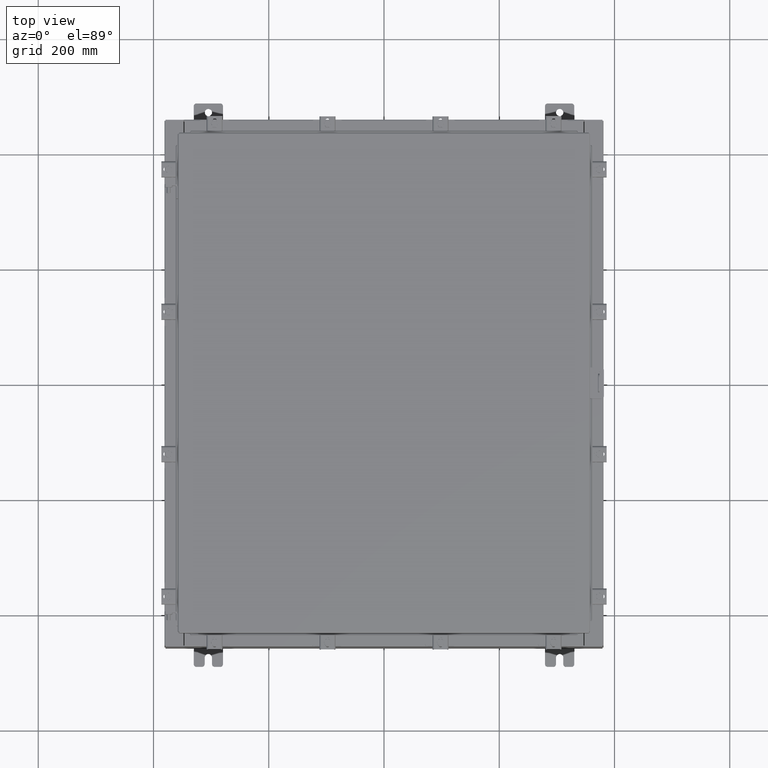
[diagram: clean part render]
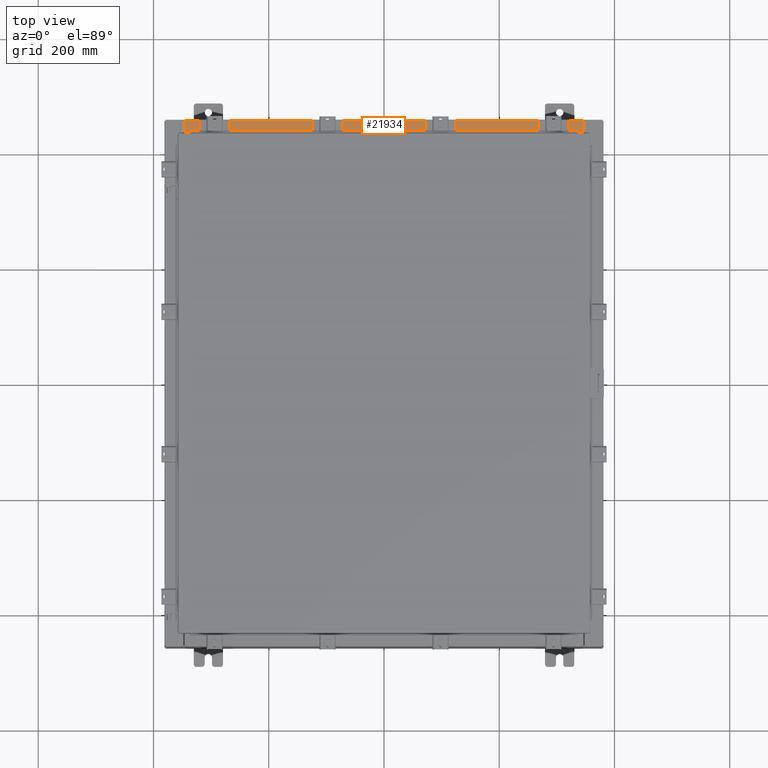
[diagram: same view with one face highlighted and labeled with its STEP entity id]
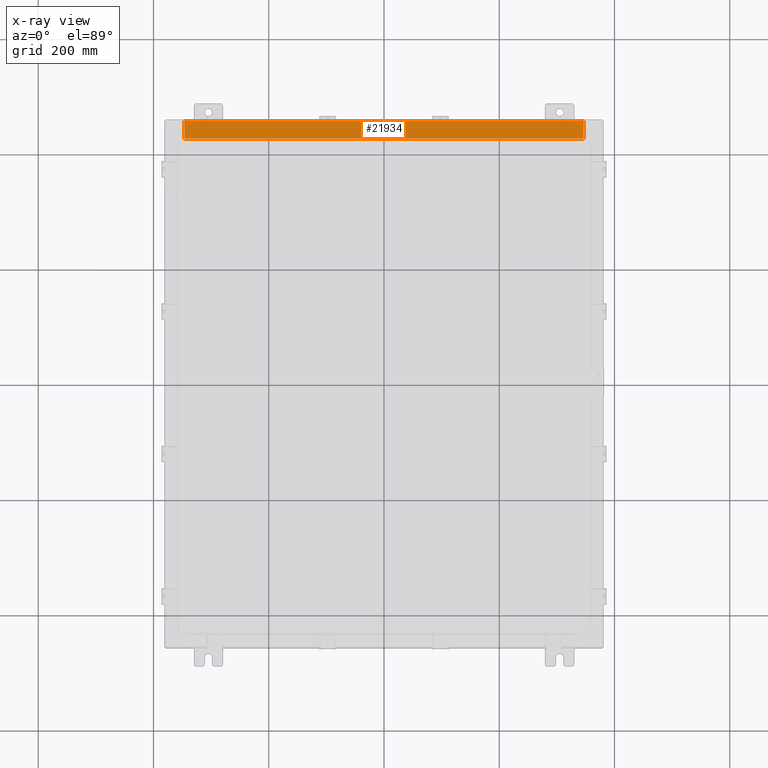
[diagram: x-ray of the same camera — body ghosted, the highlighted face saturated]
A machine part, top view. The second image highlights one B-rep face of the part: STEP entity #21934.
The next image is the same camera in x-ray: the body ghosted, the highlighted face saturated — about 0% of this face is hidden behind the body in this view.
In plain terms, the highlighted planar face has unit normal (0, 0, 1).
Its self-contained STEP definition (entity closure, byte-faithful):
#238 = DIRECTION ( 'NONE',  ( -1.000000000000000000, 2.003232330437526000E-017, -7.144290108027600900E-032 ) ) ;
#642 = EDGE_CURVE ( 'NONE', #10530, #777, #15994, .T. ) ;
#777 = VERTEX_POINT ( 'NONE', #992 ) ;
#800 = DIRECTION ( 'NONE',  ( -0.0000000000000000000, 1.000000000000000000, -3.566381192773190000E-015 ) ) ;
#817 = VERTEX_POINT ( 'NONE', #20009 ) ;
#992 = CARTESIAN_POINT ( 'NONE',  ( -13.63719999999999800, -0.08770000000000026400, 4.000000000000000900 ) ) ;
#1172 = ORIENTED_EDGE ( 'NONE', *, *, #23646, .F. ) ;
#2699 = LINE ( 'NONE', #17365, #8342 ) ;
#3154 = VECTOR ( 'NONE', #238, 39.37007874015748100 ) ;
#4201 = ORIENTED_EDGE ( 'NONE', *, *, #642, .F. ) ;
#6037 = DIRECTION ( 'NONE',  ( -0.0000000000000000000, -1.000000000000000000, 3.566381192773190000E-015 ) ) ;
#6494 = ORIENTED_EDGE ( 'NONE', *, *, #16394, .T. ) ;
#7000 = PLANE ( 'NONE',  #11662 ) ;
#8043 = EDGE_CURVE ( 'NONE', #817, #9838, #2699, .T. ) ;
#8342 = VECTOR ( 'NONE', #6037, 39.37007874015748100 ) ;
#8353 = CARTESIAN_POINT ( 'NONE',  ( -13.63719999999999800, -0.07470000000000015500, 4.000000000000000900 ) ) ;
#8913 = DIRECTION ( 'NONE',  ( 0.0000000000000000000, -1.000000000000000000, 3.566381192773190000E-015 ) ) ;
#9181 = VECTOR ( 'NONE', #800, 39.37007874015748100 ) ;
#9362 = DIRECTION ( 'NONE',  ( -1.000000000000000000, 0.0000000000000000000, 0.0000000000000000000 ) ) ;
#9838 = VERTEX_POINT ( 'NONE', #22453 ) ;
#10530 = VERTEX_POINT ( 'NONE', #24175 ) ;
#11143 = CARTESIAN_POINT ( 'NONE',  ( 13.63720000000000400, -1.287299999999999200, 4.000000000000002700 ) ) ;
#11662 = AXIS2_PLACEMENT_3D ( 'NONE', #22021, #20216, #8913 ) ;
#14306 = FACE_OUTER_BOUND ( 'NONE', #20424, .T. ) ;
#15026 = ORIENTED_EDGE ( 'NONE', *, *, #8043, .F. ) ;
#15448 = LINE ( 'NONE', #11143, #19856 ) ;
#15994 = LINE ( 'NONE', #8353, #9181 ) ;
#16394 = EDGE_CURVE ( 'NONE', #817, #777, #18273, .T. ) ;
#17365 = CARTESIAN_POINT ( 'NONE',  ( 13.63720000000000400, -1.300299999999999300, 4.000000000000004400 ) ) ;
#18273 = LINE ( 'NONE', #21065, #3154 ) ;
#19856 = VECTOR ( 'NONE', #9362, 39.37007874015748100 ) ;
#20009 = CARTESIAN_POINT ( 'NONE',  ( 13.63720000000000400, -0.08770000000000026400, 4.000000000000000900 ) ) ;
#20216 = DIRECTION ( 'NONE',  ( 0.0000000000000000000, 3.566381192773190000E-015, 1.000000000000000000 ) ) ;
#20424 = EDGE_LOOP ( 'NONE', ( #4201, #1172, #15026, #6494 ) ) ;
#21065 = CARTESIAN_POINT ( 'NONE',  ( -1.756834736719231400E-018, -0.08770000000000026400, 4.000000000000000900 ) ) ;
#21934 = ADVANCED_FACE ( 'NONE', ( #14306 ), #7000, .T. ) ;
#22021 = CARTESIAN_POINT ( 'NONE',  ( 0.0000000000000000000, 1.529834876451987200E-014, 4.000000000000000900 ) ) ;
#22453 = CARTESIAN_POINT ( 'NONE',  ( 13.63720000000000400, -1.287299999999999200, 4.000000000000004400 ) ) ;
#23646 = EDGE_CURVE ( 'NONE', #9838, #10530, #15448, .T. ) ;
#24175 = CARTESIAN_POINT ( 'NONE',  ( -13.63719999999999800, -1.287299999999999200, 4.000000000000004400 ) ) ;